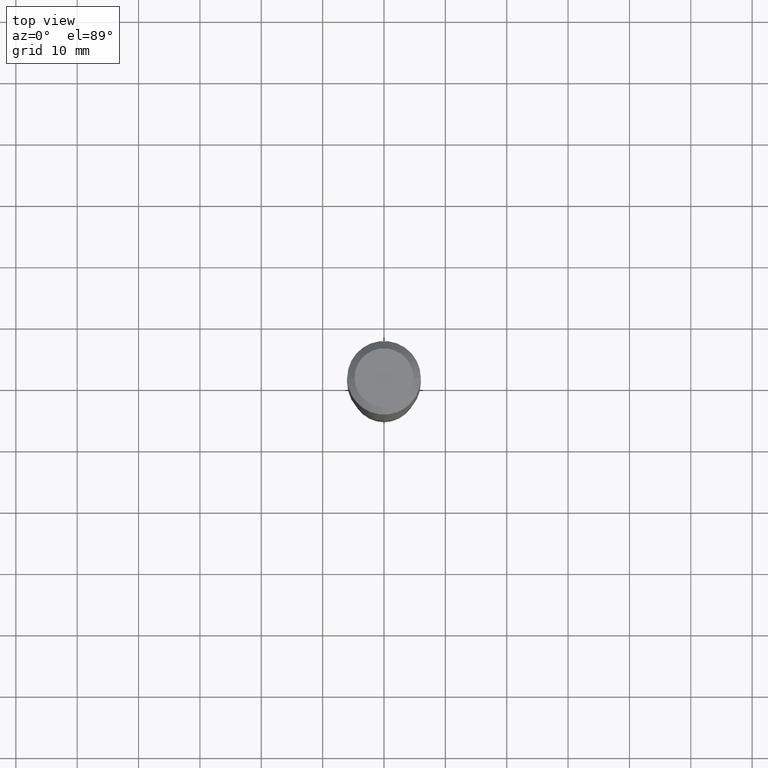
[diagram: clean part render]
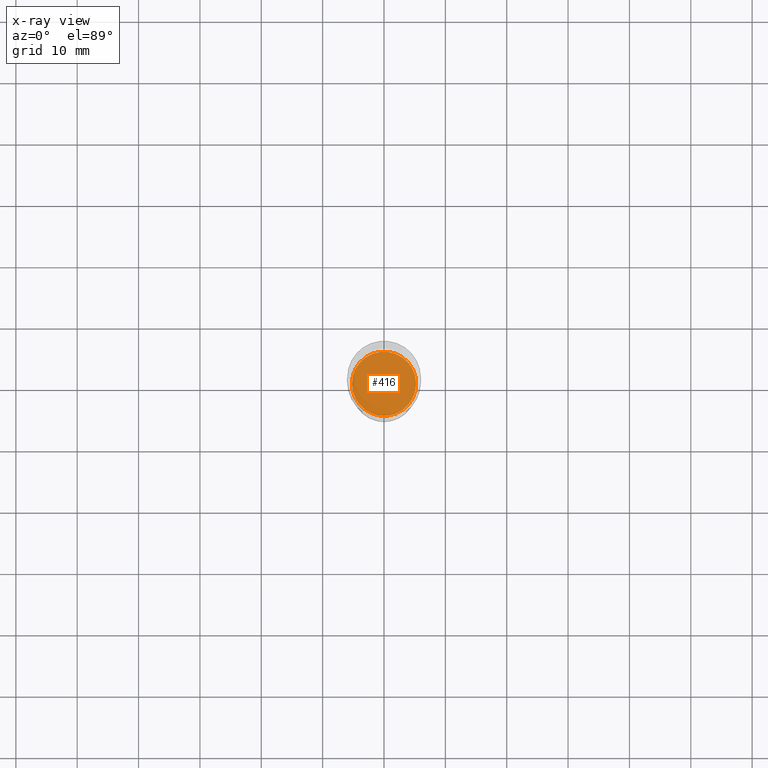
[diagram: x-ray — body ghosted, one internal face saturated and labeled with its STEP entity id]
A machine part, top view, then the same camera in x-ray: the body is ghosted and one INTERNAL B-rep face — a face not visible from any outside direction — is saturated and labeled: STEP entity #416.
In plain terms, the highlighted planar face has unit normal (-0, 0, 1).
Its self-contained STEP definition (entity closure, byte-faithful):
#11 = AXIS2_PLACEMENT_3D ( 'NONE', #29, #110, #75 ) ;
#29 = CARTESIAN_POINT ( 'NONE',  ( 5.536052283441911489E-29, -7.904015454873111947E-15, -2.263799999999999812 ) ) ;
#49 = AXIS2_PLACEMENT_3D ( 'NONE', #441, #450, #67 ) ;
#58 = AXIS2_PLACEMENT_3D ( 'NONE', #238, #187, #388 ) ;
#67 = DIRECTION ( 'NONE',  ( 1.000000000000000000, -6.982962677686265922E-15, 4.876176775795935793E-29 ) ) ;
#75 = DIRECTION ( 'NONE',  ( 1.000000000000000000, -6.982962677686268288E-15, 0.000000000000000000 ) ) ;
#110 = DIRECTION ( 'NONE',  ( -2.445468806185136597E-29, 3.491481338843145583E-15, 1.000000000000000000 ) ) ;
#147 = EDGE_CURVE ( 'NONE', #170, #325, #286, .T. ) ;
#153 = EDGE_CURVE ( 'NONE', #325, #170, #328, .T. ) ;
#161 = ORIENTED_EDGE ( 'NONE', *, *, #147, .F. ) ;
#170 = VERTEX_POINT ( 'NONE', #323 ) ;
#187 = DIRECTION ( 'NONE',  ( -2.445468806185136597E-29, 3.491481338843145583E-15, 1.000000000000000000 ) ) ;
#211 = ORIENTED_EDGE ( 'NONE', *, *, #153, .F. ) ;
#238 = CARTESIAN_POINT ( 'NONE',  ( 5.536052283441911489E-29, -7.904015454873111947E-15, -2.263799999999999812 ) ) ;
#286 = CIRCLE ( 'NONE', #58, 0.2062000000000000222 ) ;
#323 = CARTESIAN_POINT ( 'NONE',  ( 0.2062000000000000222, -9.343902359012020155E-15, -2.263799999999999812 ) ) ;
#325 = VERTEX_POINT ( 'NONE', #327 ) ;
#327 = CARTESIAN_POINT ( 'NONE',  ( -0.2062000000000000222, -6.436227106561674597E-15, -2.263799999999999812 ) ) ;
#328 = CIRCLE ( 'NONE', #11, 0.2062000000000000222 ) ;
#332 = FACE_OUTER_BOUND ( 'NONE', #389, .T. ) ;
#388 = DIRECTION ( 'NONE',  ( 1.000000000000000000, -6.982962677686268288E-15, 0.000000000000000000 ) ) ;
#389 = EDGE_LOOP ( 'NONE', ( #161, #211 ) ) ;
#416 = ADVANCED_FACE ( 'NONE', ( #332 ), #478, .F. ) ;
#441 = CARTESIAN_POINT ( 'NONE',  ( 5.536052283441911489E-29, -7.904015454873111947E-15, -2.263799999999999812 ) ) ;
#450 = DIRECTION ( 'NONE',  ( -2.438088387897960049E-29, 3.491481338843145188E-15, 1.000000000000000000 ) ) ;
#478 = PLANE ( 'NONE',  #49 ) ;